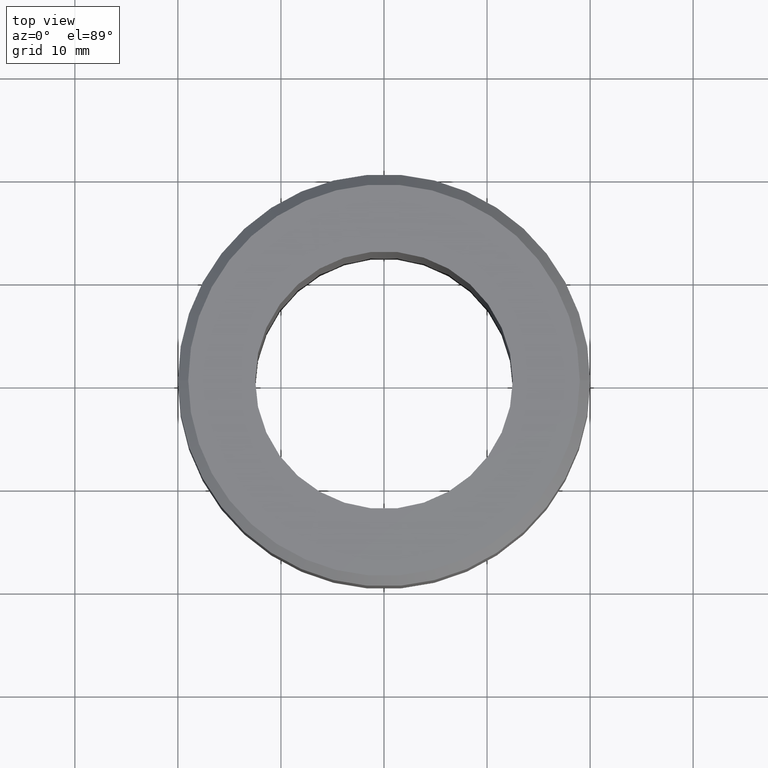
[diagram: clean part render]
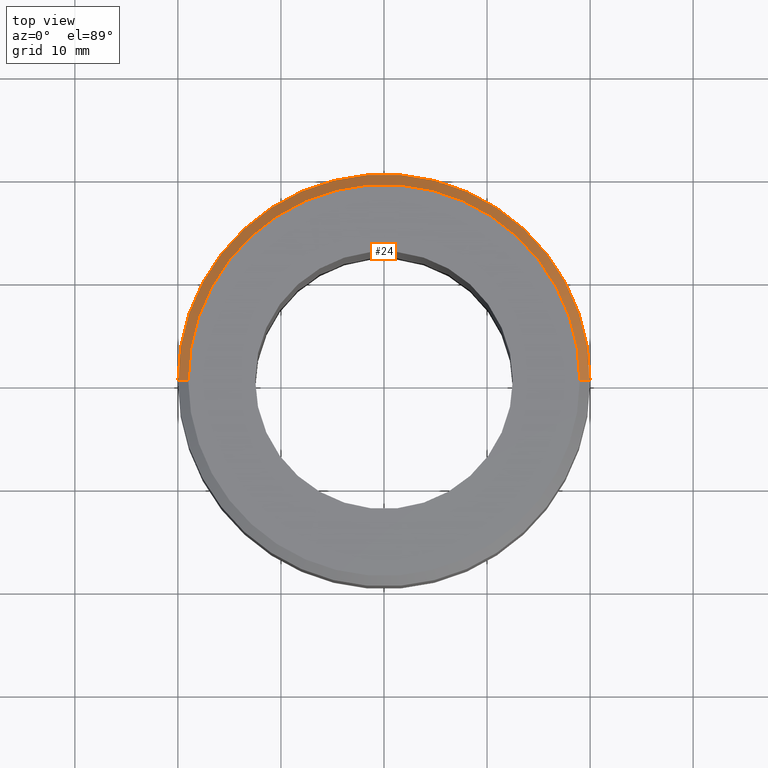
[diagram: same view with one face highlighted and labeled with its STEP entity id]
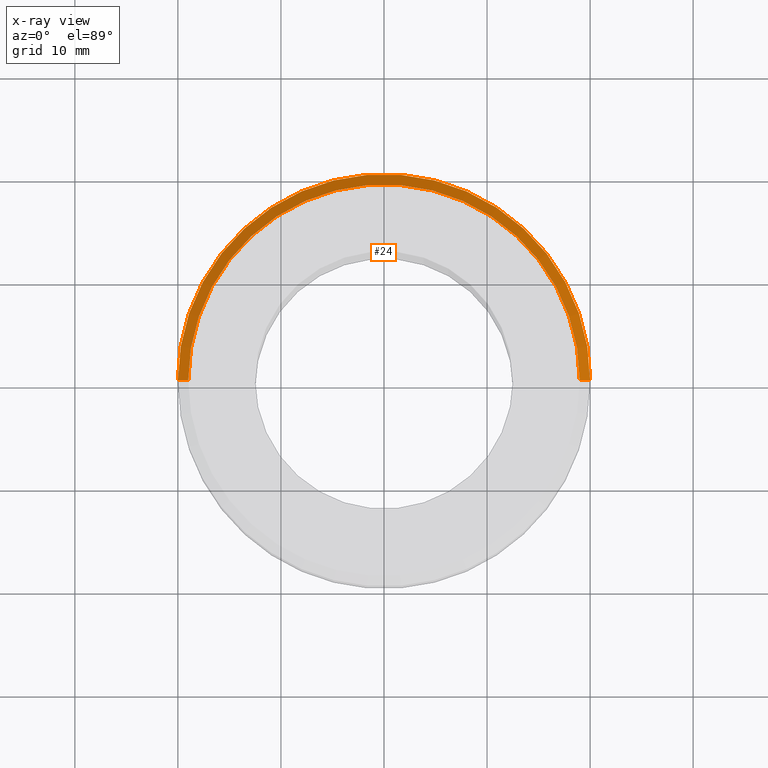
[diagram: x-ray of the same camera — body ghosted, the highlighted face saturated]
A machine part, top view. The second image highlights one B-rep face of the part: STEP entity #24.
The next image is the same camera in x-ray: the body ghosted, the highlighted face saturated — about 0% of this face is hidden behind the body in this view.
In plain terms, the highlighted conical surface has half-angle 45 deg.
Its self-contained STEP definition (entity closure, byte-faithful):
#24 = ADVANCED_FACE ( 'NONE', ( #418 ), #406, .T. ) ;
#36 = DIRECTION ( 'NONE',  ( 0.7071067811865474617, 8.659560562354932858E-17, -0.7071067811865474617 ) ) ;
#75 = ORIENTED_EDGE ( 'NONE', *, *, #273, .F. ) ;
#90 = CARTESIAN_POINT ( 'NONE',  ( 19.00000000000001066, 2.388061258337339728E-15, 0.000000000000000000 ) ) ;
#115 = CARTESIAN_POINT ( 'NONE',  ( 20.00000000000000000, 0.000000000000000000, -0.9999999999999904521 ) ) ;
#125 = VECTOR ( 'NONE', #36, 1000.000000000000114 ) ;
#137 = CARTESIAN_POINT ( 'NONE',  ( 0.000000000000000000, 0.000000000000000000, 0.000000000000000000 ) ) ;
#148 = CARTESIAN_POINT ( 'NONE',  ( -19.00000000000001066, 0.000000000000000000, 0.000000000000000000 ) ) ;
#156 = CARTESIAN_POINT ( 'NONE',  ( 0.000000000000000000, 0.000000000000000000, -0.9999999999999904521 ) ) ;
#168 = CIRCLE ( 'NONE', #467, 20.00000000000000000 ) ;
#188 = ORIENTED_EDGE ( 'NONE', *, *, #421, .F. ) ;
#231 = ORIENTED_EDGE ( 'NONE', *, *, #454, .T. ) ;
#238 = ORIENTED_EDGE ( 'NONE', *, *, #394, .F. ) ;
#246 = DIRECTION ( 'NONE',  ( 1.000000000000000000, 0.000000000000000000, 0.000000000000000000 ) ) ;
#268 = AXIS2_PLACEMENT_3D ( 'NONE', #396, #427, #246 ) ;
#273 = EDGE_CURVE ( 'NONE', #479, #505, #430, .T. ) ;
#274 = DIRECTION ( 'NONE',  ( 1.000000000000000000, 0.000000000000000000, 0.000000000000000000 ) ) ;
#279 = DIRECTION ( 'NONE',  ( -0.7071067811865474617, 0.000000000000000000, -0.7071067811865474617 ) ) ;
#293 = LINE ( 'NONE', #405, #125 ) ;
#322 = DIRECTION ( 'NONE',  ( 0.000000000000000000, 0.000000000000000000, -1.000000000000000000 ) ) ;
#367 = VECTOR ( 'NONE', #279, 1000.000000000000114 ) ;
#372 = VERTEX_POINT ( 'NONE', #403 ) ;
#394 = EDGE_CURVE ( 'NONE', #372, #444, #168, .T. ) ;
#396 = CARTESIAN_POINT ( 'NONE',  ( 0.000000000000000000, 0.000000000000000000, 0.000000000000000000 ) ) ;
#403 = CARTESIAN_POINT ( 'NONE',  ( -20.00000000000000000, 2.449293598294706513E-15, -0.9999999999999904521 ) ) ;
#405 = CARTESIAN_POINT ( 'NONE',  ( 19.00000000000001066, 2.326828918379972548E-15, 0.000000000000000000 ) ) ;
#406 = CONICAL_SURFACE ( 'NONE', #449, 19.00000000000001066, 0.7853981633974482790 ) ;
#418 = FACE_OUTER_BOUND ( 'NONE', #493, .T. ) ;
#421 = EDGE_CURVE ( 'NONE', #505, #372, #510, .T. ) ;
#427 = DIRECTION ( 'NONE',  ( -0.000000000000000000, -0.000000000000000000, 1.000000000000000000 ) ) ;
#430 = CIRCLE ( 'NONE', #268, 19.00000000000001066 ) ;
#444 = VERTEX_POINT ( 'NONE', #115 ) ;
#449 = AXIS2_PLACEMENT_3D ( 'NONE', #137, #455, #500 ) ;
#454 = EDGE_CURVE ( 'NONE', #479, #444, #293, .T. ) ;
#455 = DIRECTION ( 'NONE',  ( 0.000000000000000000, 0.000000000000000000, -1.000000000000000000 ) ) ;
#458 = CARTESIAN_POINT ( 'NONE',  ( -19.00000000000001066, 0.000000000000000000, 0.000000000000000000 ) ) ;
#467 = AXIS2_PLACEMENT_3D ( 'NONE', #156, #322, #274 ) ;
#479 = VERTEX_POINT ( 'NONE', #90 ) ;
#493 = EDGE_LOOP ( 'NONE', ( #75, #231, #238, #188 ) ) ;
#500 = DIRECTION ( 'NONE',  ( -1.000000000000000000, 0.000000000000000000, 0.000000000000000000 ) ) ;
#505 = VERTEX_POINT ( 'NONE', #458 ) ;
#510 = LINE ( 'NONE', #148, #367 ) ;